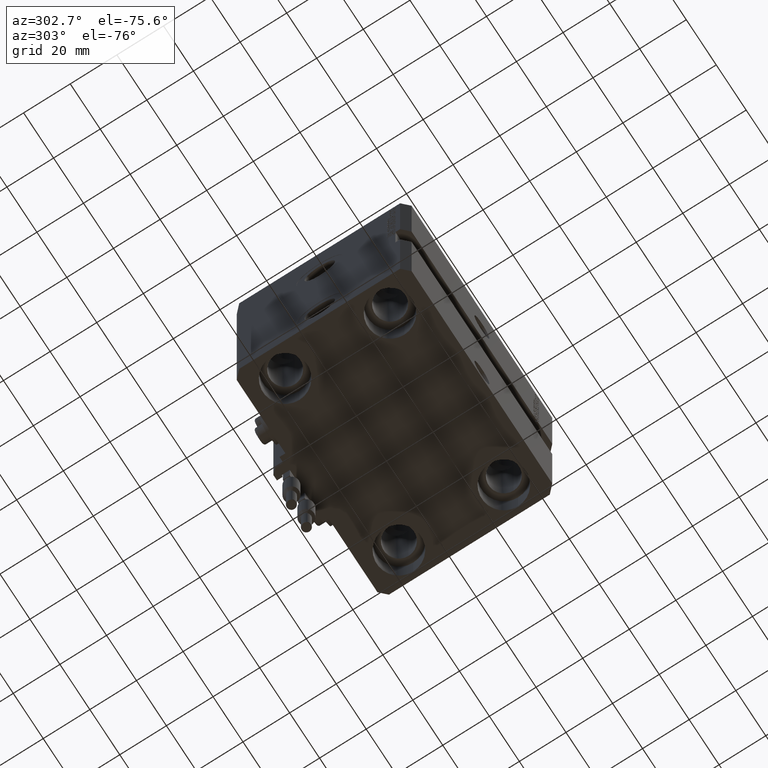
[diagram: clean part render]
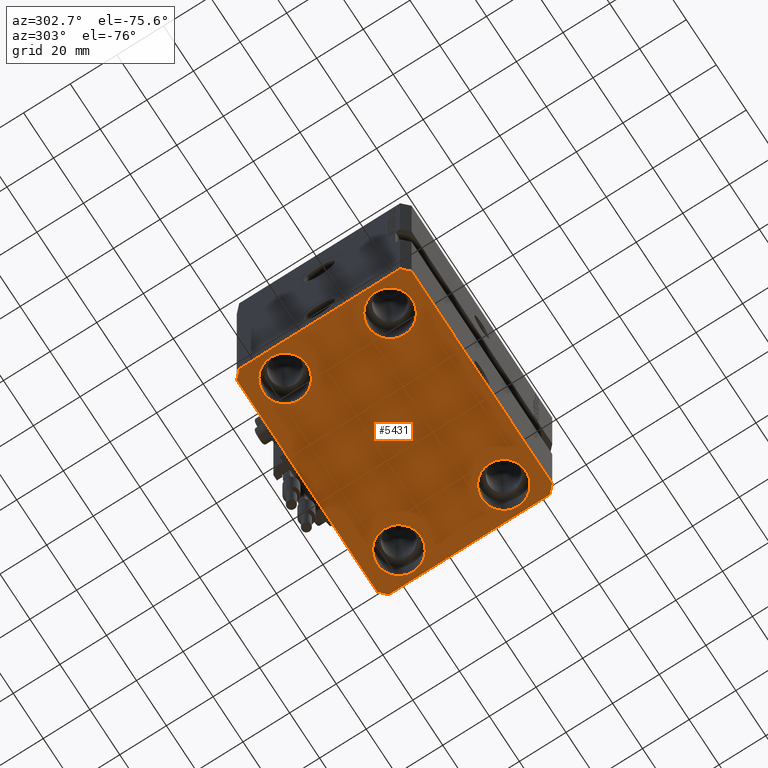
[diagram: same view with one face highlighted and labeled with its STEP entity id]
A machine part, auxiliary view. The second image highlights one B-rep face of the part: STEP entity #5431.
In plain terms, the highlighted planar face has unit normal (0, 0, 1).
Its self-contained STEP definition (entity closure, byte-faithful):
#1320 = LINE ( 'NONE', #17306, #41701 ) ;
#2305 = DIRECTION ( 'NONE',  ( 0.7071067811865491270, -0.7071067811865459074, 0.000000000000000000 ) ) ;
#2528 = EDGE_CURVE ( 'NONE', #28648, #3015, #42392, .T. ) ;
#2853 = VECTOR ( 'NONE', #14182, 1000.000000000000000 ) ;
#3015 = VERTEX_POINT ( 'NONE', #27738 ) ;
#3167 = CARTESIAN_POINT ( 'NONE',  ( -38.00000000000000711, -22.50000000000000000, -95.00000000000000000 ) ) ;
#3468 = CARTESIAN_POINT ( 'NONE',  ( -28.50000000000000355, -22.50000000000000000, -95.00000000000000000 ) ) ;
#4512 = FACE_BOUND ( 'NONE', #18787, .T. ) ;
#4609 = VERTEX_POINT ( 'NONE', #20269 ) ;
#4800 = ORIENTED_EDGE ( 'NONE', *, *, #40678, .T. ) ;
#5075 = ORIENTED_EDGE ( 'NONE', *, *, #22020, .T. ) ;
#5150 = EDGE_LOOP ( 'NONE', ( #24153, #4800 ) ) ;
#5357 = AXIS2_PLACEMENT_3D ( 'NONE', #15075, #19511, #11408 ) ;
#5364 = VERTEX_POINT ( 'NONE', #19721 ) ;
#5431 = ADVANCED_FACE ( 'NONE', ( #44356, #32772, #40667, #4512, #27820 ), #19970, .F. ) ;
#6000 = CARTESIAN_POINT ( 'NONE',  ( 47.00000000000000000, -37.50000000000000711, -95.00000000000000000 ) ) ;
#6184 = CIRCLE ( 'NONE', #5357, 9.500000000000001776 ) ;
#7282 = CARTESIAN_POINT ( 'NONE',  ( -50.00000000000000000, -34.50000000000000000, -95.00000000000000000 ) ) ;
#7603 = CARTESIAN_POINT ( 'NONE',  ( -38.00000000000000711, -22.50000000000000000, -95.00000000000000000 ) ) ;
#7666 = CARTESIAN_POINT ( 'NONE',  ( -47.00000000000001421, 37.50000000000000000, -95.00000000000000000 ) ) ;
#7946 = DIRECTION ( 'NONE',  ( 1.000000000000000000, 0.000000000000000000, -0.000000000000000000 ) ) ;
#8415 = EDGE_CURVE ( 'NONE', #3015, #23981, #1320, .T. ) ;
#8650 = CIRCLE ( 'NONE', #51342, 9.500000000000001776 ) ;
#9443 = VECTOR ( 'NONE', #43563, 1000.000000000000000 ) ;
#9584 = CARTESIAN_POINT ( 'NONE',  ( -47.00000000000001421, 37.50000000000000000, -95.00000000000000000 ) ) ;
#9700 = CARTESIAN_POINT ( 'NONE',  ( -50.00000000000000000, -34.50000000000000000, -95.00000000000000000 ) ) ;
#10286 = ORIENTED_EDGE ( 'NONE', *, *, #42335, .T. ) ;
#10475 = DIRECTION ( 'NONE',  ( 1.000000000000000000, 0.000000000000000000, 0.000000000000000000 ) ) ;
#10511 = DIRECTION ( 'NONE',  ( 1.000000000000000000, 0.000000000000000000, 0.000000000000000000 ) ) ;
#10571 = DIRECTION ( 'NONE',  ( -1.000000000000000000, 7.381802025433175941E-17, 0.000000000000000000 ) ) ;
#11237 = VECTOR ( 'NONE', #26668, 1000.000000000000000 ) ;
#11408 = DIRECTION ( 'NONE',  ( 1.000000000000000000, 0.000000000000000000, 0.000000000000000000 ) ) ;
#11603 = LINE ( 'NONE', #7666, #9443 ) ;
#11654 = CARTESIAN_POINT ( 'NONE',  ( 47.00000000000056843, 37.49999999999999289, -95.00000000000000000 ) ) ;
#11848 = ORIENTED_EDGE ( 'NONE', *, *, #49489, .T. ) ;
#13497 = CARTESIAN_POINT ( 'NONE',  ( 47.50000000000000711, 22.50000000000001421, -95.00000000000000000 ) ) ;
#13544 = ORIENTED_EDGE ( 'NONE', *, *, #20852, .F. ) ;
#13572 = CIRCLE ( 'NONE', #17758, 9.500000000000001776 ) ;
#13916 = CIRCLE ( 'NONE', #18097, 9.500000000000001776 ) ;
#14182 = DIRECTION ( 'NONE',  ( 2.011273595335428326E-16, -1.000000000000000000, 0.000000000000000000 ) ) ;
#14567 = VECTOR ( 'NONE', #2305, 1000.000000000000114 ) ;
#14974 = AXIS2_PLACEMENT_3D ( 'NONE', #22382, #47031, #26824 ) ;
#15055 = EDGE_CURVE ( 'NONE', #19327, #42537, #19963, .T. ) ;
#15075 = CARTESIAN_POINT ( 'NONE',  ( 38.00000000000000711, -22.50000000000000000, -95.00000000000000000 ) ) ;
#15418 = AXIS2_PLACEMENT_3D ( 'NONE', #3167, #38271, #35105 ) ;
#15436 = DIRECTION ( 'NONE',  ( -0.000000000000000000, -0.000000000000000000, 1.000000000000000000 ) ) ;
#16523 = DIRECTION ( 'NONE',  ( 1.000000000000000000, -1.476360405086644309E-16, 0.000000000000000000 ) ) ;
#17297 = ORIENTED_EDGE ( 'NONE', *, *, #39007, .F. ) ;
#17306 = CARTESIAN_POINT ( 'NONE',  ( -47.00000000000000000, -37.49999999999999289, -95.00000000000000000 ) ) ;
#17325 = VERTEX_POINT ( 'NONE', #13497 ) ;
#17754 = CIRCLE ( 'NONE', #42865, 9.500000000000001776 ) ;
#17758 = AXIS2_PLACEMENT_3D ( 'NONE', #47159, #15436, #10475 ) ;
#17863 = CARTESIAN_POINT ( 'NONE',  ( 50.00000000000051870, 34.49999999999995026, -95.00000000000000000 ) ) ;
#18097 = AXIS2_PLACEMENT_3D ( 'NONE', #7603, #23810, #27999 ) ;
#18787 = EDGE_LOOP ( 'NONE', ( #49229, #29816 ) ) ;
#19327 = VERTEX_POINT ( 'NONE', #44147 ) ;
#19343 = CARTESIAN_POINT ( 'NONE',  ( 28.50000000000000355, 22.50000000000001421, -95.00000000000000000 ) ) ;
#19511 = DIRECTION ( 'NONE',  ( -0.000000000000000000, -0.000000000000000000, 1.000000000000000000 ) ) ;
#19588 = ORIENTED_EDGE ( 'NONE', *, *, #41696, .F. ) ;
#19717 = LINE ( 'NONE', #35680, #2853 ) ;
#19721 = CARTESIAN_POINT ( 'NONE',  ( 50.00000000000000000, -34.50000000000000711, -95.00000000000000000 ) ) ;
#19783 = DIRECTION ( 'NONE',  ( 1.000000000000000000, 0.000000000000000000, 0.000000000000000000 ) ) ;
#19963 = CIRCLE ( 'NONE', #14974, 9.500000000000001776 ) ;
#19970 = PLANE ( 'NONE',  #28045 ) ;
#20269 = CARTESIAN_POINT ( 'NONE',  ( 50.00000000000051870, 34.49999999999995026, -95.00000000000000000 ) ) ;
#20852 = EDGE_CURVE ( 'NONE', #4609, #39925, #38022, .T. ) ;
#21055 = EDGE_LOOP ( 'NONE', ( #50288, #13544, #27766, #19588, #25112, #41060, #43226, #17297 ) ) ;
#21856 = VERTEX_POINT ( 'NONE', #46239 ) ;
#21890 = AXIS2_PLACEMENT_3D ( 'NONE', #27952, #38270, #10511 ) ;
#22020 = EDGE_CURVE ( 'NONE', #17325, #30533, #28584, .T. ) ;
#22087 = CIRCLE ( 'NONE', #15418, 9.500000000000001776 ) ;
#22382 = CARTESIAN_POINT ( 'NONE',  ( 38.00000000000000711, -22.50000000000000000, -95.00000000000000000 ) ) ;
#22728 = LINE ( 'NONE', #6000, #11237 ) ;
#22941 = VECTOR ( 'NONE', #50388, 1000.000000000000000 ) ;
#23347 = CARTESIAN_POINT ( 'NONE',  ( 50.00000000000000000, -34.50000000000000711, -95.00000000000000000 ) ) ;
#23372 = EDGE_CURVE ( 'NONE', #21856, #32931, #13572, .T. ) ;
#23810 = DIRECTION ( 'NONE',  ( -0.000000000000000000, -0.000000000000000000, 1.000000000000000000 ) ) ;
#23915 = VERTEX_POINT ( 'NONE', #31508 ) ;
#23925 = DIRECTION ( 'NONE',  ( -0.000000000000000000, -0.000000000000000000, 1.000000000000000000 ) ) ;
#23981 = VERTEX_POINT ( 'NONE', #28610 ) ;
#24153 = ORIENTED_EDGE ( 'NONE', *, *, #15055, .T. ) ;
#24766 = VERTEX_POINT ( 'NONE', #9584 ) ;
#25112 = ORIENTED_EDGE ( 'NONE', *, *, #8415, .F. ) ;
#26034 = VECTOR ( 'NONE', #33829, 1000.000000000000114 ) ;
#26238 = LINE ( 'NONE', #23347, #22941 ) ;
#26249 = EDGE_CURVE ( 'NONE', #32931, #21856, #17754, .T. ) ;
#26668 = DIRECTION ( 'NONE',  ( 0.7071067811865483499, 0.7071067811865466846, 0.000000000000000000 ) ) ;
#26824 = DIRECTION ( 'NONE',  ( 1.000000000000000000, 0.000000000000000000, 0.000000000000000000 ) ) ;
#27738 = CARTESIAN_POINT ( 'NONE',  ( -47.00000000000000000, -37.49999999999999289, -95.00000000000000000 ) ) ;
#27766 = ORIENTED_EDGE ( 'NONE', *, *, #30409, .F. ) ;
#27820 = FACE_OUTER_BOUND ( 'NONE', #21055, .T. ) ;
#27952 = CARTESIAN_POINT ( 'NONE',  ( 38.00000000000000711, 22.50000000000001421, -95.00000000000000000 ) ) ;
#27999 = DIRECTION ( 'NONE',  ( 1.000000000000000000, 0.000000000000000000, 0.000000000000000000 ) ) ;
#28045 = AXIS2_PLACEMENT_3D ( 'NONE', #35934, #36711, #7946 ) ;
#28114 = DIRECTION ( 'NONE',  ( 1.000000000000000000, 0.000000000000000000, 0.000000000000000000 ) ) ;
#28141 = CARTESIAN_POINT ( 'NONE',  ( -38.00000000000000711, 22.50000000000000000, -95.00000000000000000 ) ) ;
#28584 = CIRCLE ( 'NONE', #21890, 9.500000000000001776 ) ;
#28610 = CARTESIAN_POINT ( 'NONE',  ( 47.00000000000000000, -37.50000000000000711, -95.00000000000000000 ) ) ;
#28648 = VERTEX_POINT ( 'NONE', #9700 ) ;
#29816 = ORIENTED_EDGE ( 'NONE', *, *, #23372, .T. ) ;
#29918 = EDGE_LOOP ( 'NONE', ( #37314, #5075 ) ) ;
#30409 = EDGE_CURVE ( 'NONE', #5364, #4609, #26238, .T. ) ;
#30533 = VERTEX_POINT ( 'NONE', #19343 ) ;
#31003 = EDGE_CURVE ( 'NONE', #39925, #24766, #33872, .T. ) ;
#31508 = CARTESIAN_POINT ( 'NONE',  ( -47.50000000000000711, -22.50000000000000000, -95.00000000000000000 ) ) ;
#32772 = FACE_BOUND ( 'NONE', #5150, .T. ) ;
#32931 = VERTEX_POINT ( 'NONE', #45197 ) ;
#33829 = DIRECTION ( 'NONE',  ( -0.7071067811865361374, 0.7071067811865588970, 0.000000000000000000 ) ) ;
#33872 = LINE ( 'NONE', #50936, #48060 ) ;
#35105 = DIRECTION ( 'NONE',  ( 1.000000000000000000, 0.000000000000000000, 0.000000000000000000 ) ) ;
#35680 = CARTESIAN_POINT ( 'NONE',  ( -50.00000000000001421, 34.50000000000000000, -95.00000000000000000 ) ) ;
#35934 = CARTESIAN_POINT ( 'NONE',  ( 0.000000000000000000, 0.000000000000000000, -95.00000000000000000 ) ) ;
#36711 = DIRECTION ( 'NONE',  ( 0.000000000000000000, 0.000000000000000000, 1.000000000000000000 ) ) ;
#37314 = ORIENTED_EDGE ( 'NONE', *, *, #39888, .T. ) ;
#38022 = LINE ( 'NONE', #17863, #26034 ) ;
#38270 = DIRECTION ( 'NONE',  ( -0.000000000000000000, -0.000000000000000000, 1.000000000000000000 ) ) ;
#38271 = DIRECTION ( 'NONE',  ( -0.000000000000000000, -0.000000000000000000, 1.000000000000000000 ) ) ;
#38863 = VERTEX_POINT ( 'NONE', #3468 ) ;
#39007 = EDGE_CURVE ( 'NONE', #24766, #48608, #11603, .T. ) ;
#39701 = DIRECTION ( 'NONE',  ( -0.000000000000000000, -0.000000000000000000, 1.000000000000000000 ) ) ;
#39887 = EDGE_LOOP ( 'NONE', ( #11848, #10286 ) ) ;
#39888 = EDGE_CURVE ( 'NONE', #30533, #17325, #8650, .T. ) ;
#39925 = VERTEX_POINT ( 'NONE', #11654 ) ;
#40667 = FACE_BOUND ( 'NONE', #29918, .T. ) ;
#40678 = EDGE_CURVE ( 'NONE', #42537, #19327, #6184, .T. ) ;
#40706 = CARTESIAN_POINT ( 'NONE',  ( 38.00000000000000711, 22.50000000000001421, -95.00000000000000000 ) ) ;
#41060 = ORIENTED_EDGE ( 'NONE', *, *, #2528, .F. ) ;
#41696 = EDGE_CURVE ( 'NONE', #23981, #5364, #22728, .T. ) ;
#41701 = VECTOR ( 'NONE', #16523, 1000.000000000000000 ) ;
#42112 = EDGE_CURVE ( 'NONE', #48608, #28648, #19717, .T. ) ;
#42217 = CARTESIAN_POINT ( 'NONE',  ( 47.50000000000000711, -22.50000000000000000, -95.00000000000000000 ) ) ;
#42335 = EDGE_CURVE ( 'NONE', #38863, #23915, #22087, .T. ) ;
#42392 = LINE ( 'NONE', #7282, #14567 ) ;
#42537 = VERTEX_POINT ( 'NONE', #42217 ) ;
#42865 = AXIS2_PLACEMENT_3D ( 'NONE', #28141, #39701, #19783 ) ;
#43226 = ORIENTED_EDGE ( 'NONE', *, *, #42112, .F. ) ;
#43563 = DIRECTION ( 'NONE',  ( -0.7071067811865483499, -0.7071067811865466846, 0.000000000000000000 ) ) ;
#44147 = CARTESIAN_POINT ( 'NONE',  ( 28.50000000000000355, -22.50000000000000000, -95.00000000000000000 ) ) ;
#44356 = FACE_BOUND ( 'NONE', #39887, .T. ) ;
#45197 = CARTESIAN_POINT ( 'NONE',  ( -47.50000000000000711, 22.50000000000000000, -95.00000000000000000 ) ) ;
#46239 = CARTESIAN_POINT ( 'NONE',  ( -28.50000000000000355, 22.50000000000000000, -95.00000000000000000 ) ) ;
#47031 = DIRECTION ( 'NONE',  ( -0.000000000000000000, -0.000000000000000000, 1.000000000000000000 ) ) ;
#47159 = CARTESIAN_POINT ( 'NONE',  ( -38.00000000000000711, 22.50000000000000000, -95.00000000000000000 ) ) ;
#48060 = VECTOR ( 'NONE', #10571, 1000.000000000000000 ) ;
#48608 = VERTEX_POINT ( 'NONE', #50592 ) ;
#49229 = ORIENTED_EDGE ( 'NONE', *, *, #26249, .T. ) ;
#49489 = EDGE_CURVE ( 'NONE', #23915, #38863, #13916, .T. ) ;
#50288 = ORIENTED_EDGE ( 'NONE', *, *, #31003, .F. ) ;
#50388 = DIRECTION ( 'NONE',  ( 7.441712302741091634E-15, 1.000000000000000000, 0.000000000000000000 ) ) ;
#50592 = CARTESIAN_POINT ( 'NONE',  ( -50.00000000000001421, 34.50000000000000000, -95.00000000000000000 ) ) ;
#50936 = CARTESIAN_POINT ( 'NONE',  ( 47.00000000000056843, 37.49999999999999289, -95.00000000000000000 ) ) ;
#51342 = AXIS2_PLACEMENT_3D ( 'NONE', #40706, #23925, #28114 ) ;